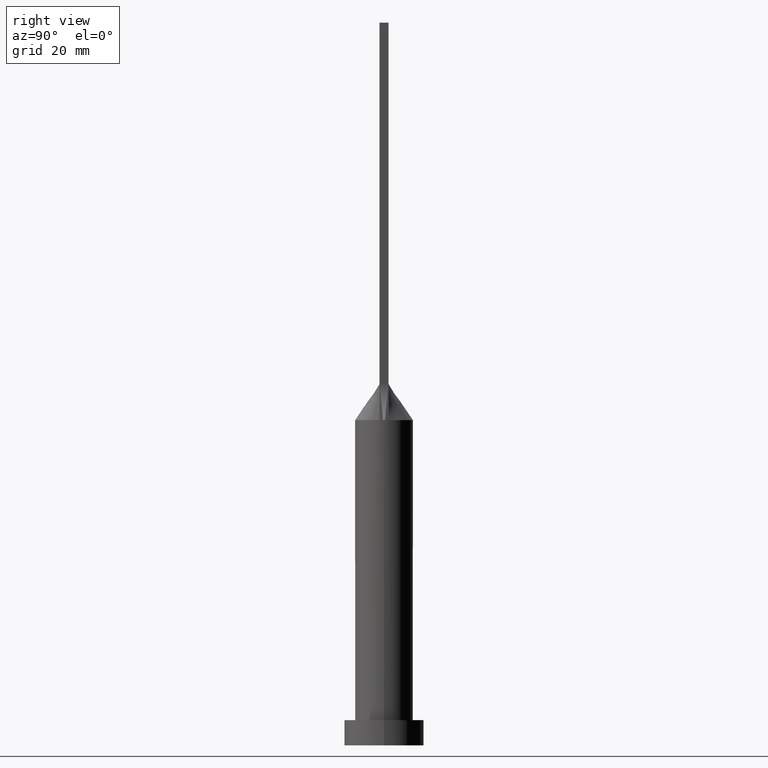
[diagram: clean part render]
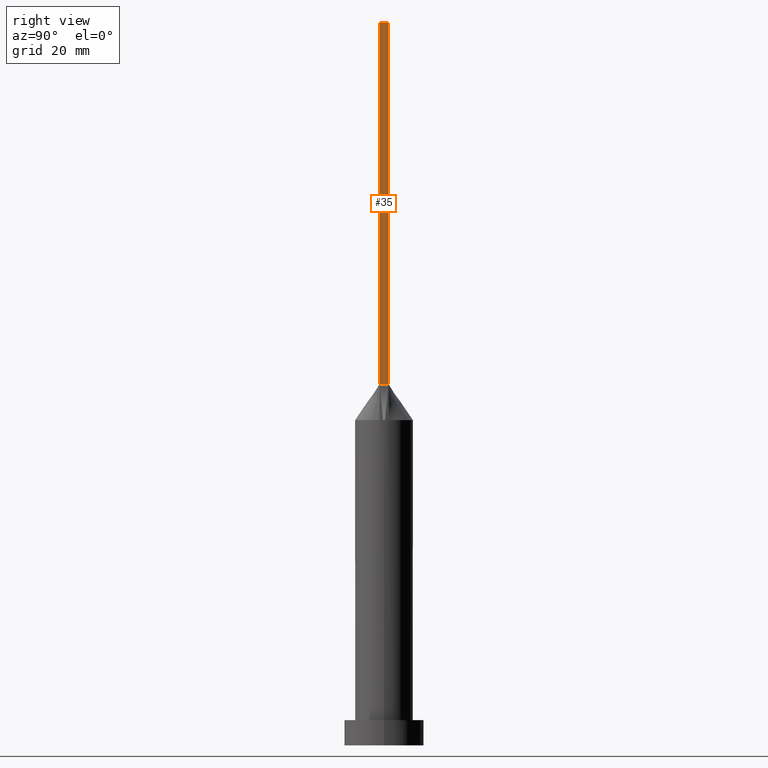
[diagram: same view with one face highlighted and labeled with its STEP entity id]
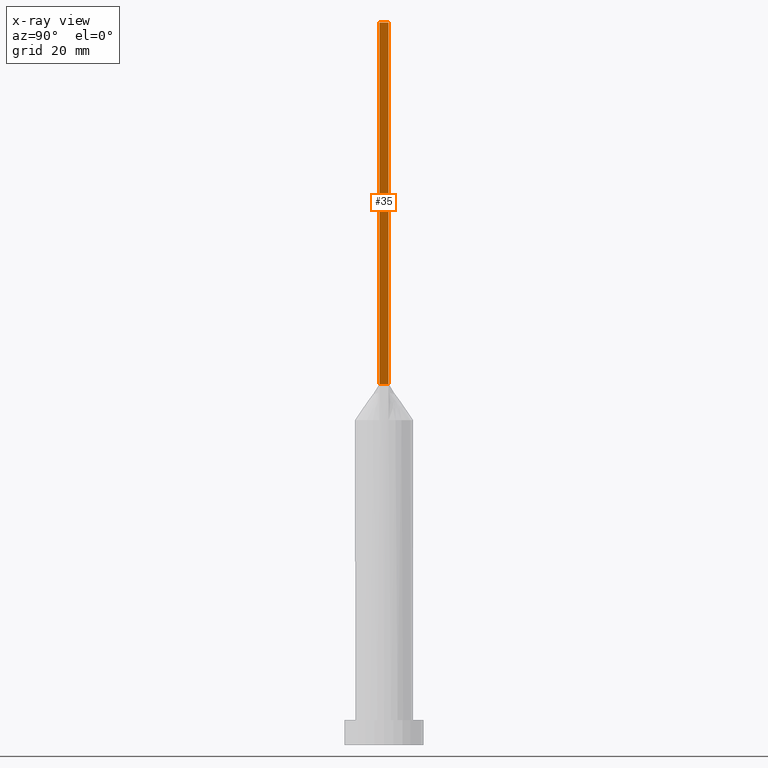
[diagram: x-ray of the same camera — body ghosted, the highlighted face saturated]
A machine part, right view. The second image highlights one B-rep face of the part: STEP entity #35.
The next image is the same camera in x-ray: the body ghosted, the highlighted face saturated — about 0% of this face is hidden behind the body in this view.
In plain terms, the highlighted planar face has unit normal (-1, 0, 0).
Its self-contained STEP definition (entity closure, byte-faithful):
#10 = CARTESIAN_POINT ( 'NONE',  ( 7.750000000000000000, 1.250000000000000222, 100.0000000000000000 ) ) ;
#28 = ORIENTED_EDGE ( 'NONE', *, *, #246, .T. ) ;
#35 = ADVANCED_FACE ( 'NONE', ( #335 ), #641, .F. ) ;
#58 = VECTOR ( 'NONE', #76, 1000.000000000000000 ) ;
#63 = VERTEX_POINT ( 'NONE', #105 ) ;
#76 = DIRECTION ( 'NONE',  ( -0.000000000000000000, 1.000000000000000000, -0.000000000000000000 ) ) ;
#105 = CARTESIAN_POINT ( 'NONE',  ( 7.750000000000000000, -1.249999999999999778, 100.0000000000000000 ) ) ;
#106 = AXIS2_PLACEMENT_3D ( 'NONE', #635, #212, #546 ) ;
#111 = ORIENTED_EDGE ( 'NONE', *, *, #528, .T. ) ;
#115 = VECTOR ( 'NONE', #457, 1000.000000000000000 ) ;
#118 = CARTESIAN_POINT ( 'NONE',  ( 7.750000000000000000, 1.250000000000000222, 100.0000000000000000 ) ) ;
#145 = EDGE_CURVE ( 'NONE', #272, #587, #351, .T. ) ;
#185 = VECTOR ( 'NONE', #213, 1000.000000000000000 ) ;
#212 = DIRECTION ( 'NONE',  ( -1.000000000000000000, 0.000000000000000000, 0.000000000000000000 ) ) ;
#213 = DIRECTION ( 'NONE',  ( 0.000000000000000000, 1.000000000000000000, 0.000000000000000000 ) ) ;
#219 = CARTESIAN_POINT ( 'NONE',  ( 7.750000000000000000, 1.250000000000000222, 200.0000000000000000 ) ) ;
#246 = EDGE_CURVE ( 'NONE', #63, #587, #280, .T. ) ;
#272 = VERTEX_POINT ( 'NONE', #373 ) ;
#280 = LINE ( 'NONE', #118, #58 ) ;
#288 = ORIENTED_EDGE ( 'NONE', *, *, #637, .F. ) ;
#307 = ORIENTED_EDGE ( 'NONE', *, *, #145, .F. ) ;
#335 = FACE_OUTER_BOUND ( 'NONE', #474, .T. ) ;
#351 = LINE ( 'NONE', #219, #372 ) ;
#353 = LINE ( 'NONE', #545, #115 ) ;
#372 = VECTOR ( 'NONE', #594, 1000.000000000000000 ) ;
#373 = CARTESIAN_POINT ( 'NONE',  ( 7.750000000000000000, 1.250000000000000222, 200.0000000000000000 ) ) ;
#385 = CARTESIAN_POINT ( 'NONE',  ( 7.750000000000000000, -1.249999999999999778, 200.0000000000000000 ) ) ;
#401 = LINE ( 'NONE', #510, #185 ) ;
#409 = VERTEX_POINT ( 'NONE', #385 ) ;
#457 = DIRECTION ( 'NONE',  ( -0.000000000000000000, -0.000000000000000000, -1.000000000000000000 ) ) ;
#474 = EDGE_LOOP ( 'NONE', ( #28, #307, #288, #111 ) ) ;
#510 = CARTESIAN_POINT ( 'NONE',  ( 7.750000000000000000, -1.249999999999999778, 200.0000000000000000 ) ) ;
#528 = EDGE_CURVE ( 'NONE', #409, #63, #353, .T. ) ;
#545 = CARTESIAN_POINT ( 'NONE',  ( 7.750000000000000000, -1.249999999999999778, 200.0000000000000000 ) ) ;
#546 = DIRECTION ( 'NONE',  ( 0.000000000000000000, 0.000000000000000000, 1.000000000000000000 ) ) ;
#587 = VERTEX_POINT ( 'NONE', #10 ) ;
#594 = DIRECTION ( 'NONE',  ( -0.000000000000000000, -0.000000000000000000, -1.000000000000000000 ) ) ;
#635 = CARTESIAN_POINT ( 'NONE',  ( 7.750000000000000000, -1.249999999999999778, 200.0000000000000000 ) ) ;
#637 = EDGE_CURVE ( 'NONE', #409, #272, #401, .T. ) ;
#641 = PLANE ( 'NONE',  #106 ) ;